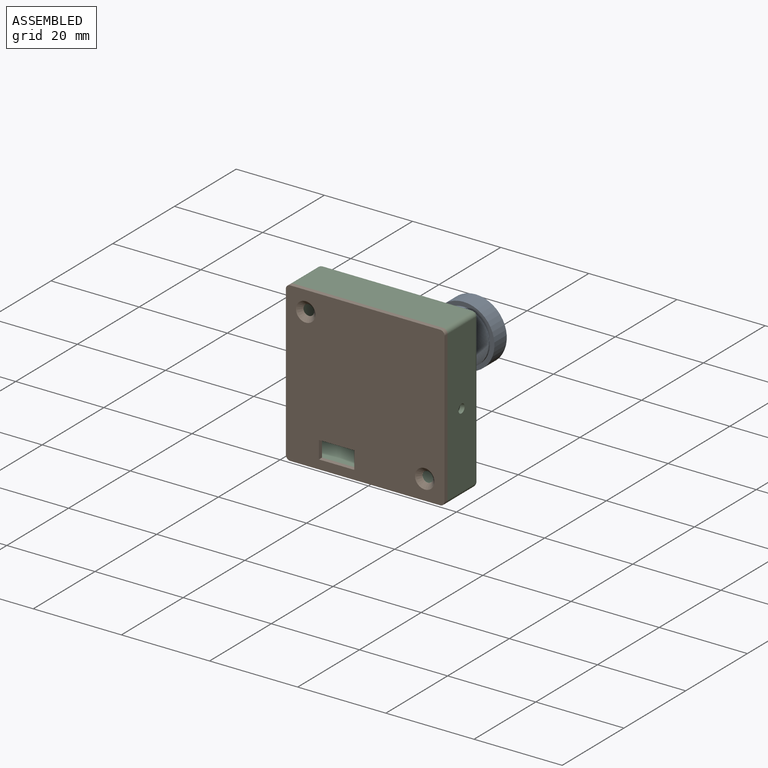
[diagram: assembled view]
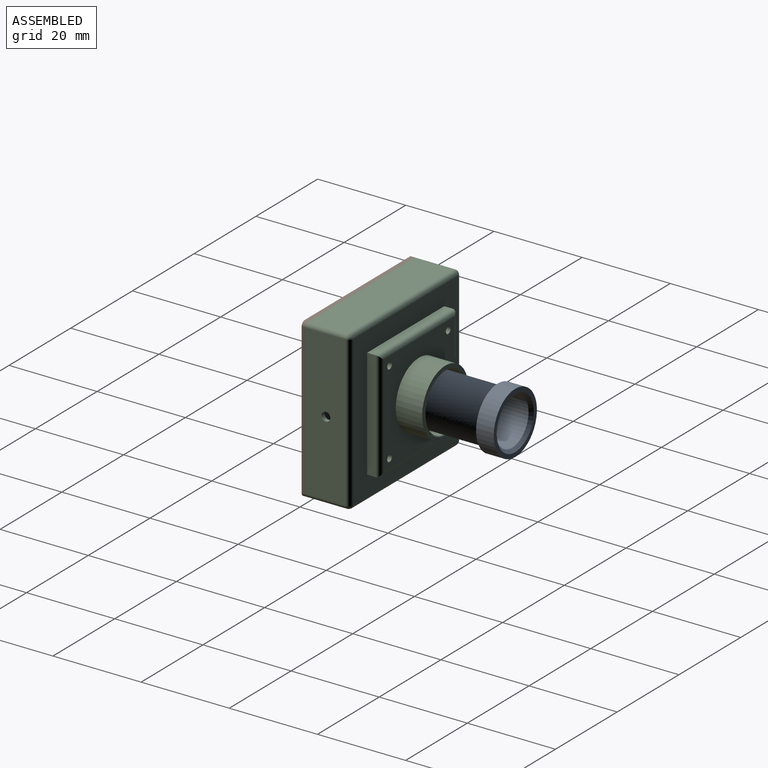
[diagram: assembled view, second angle]
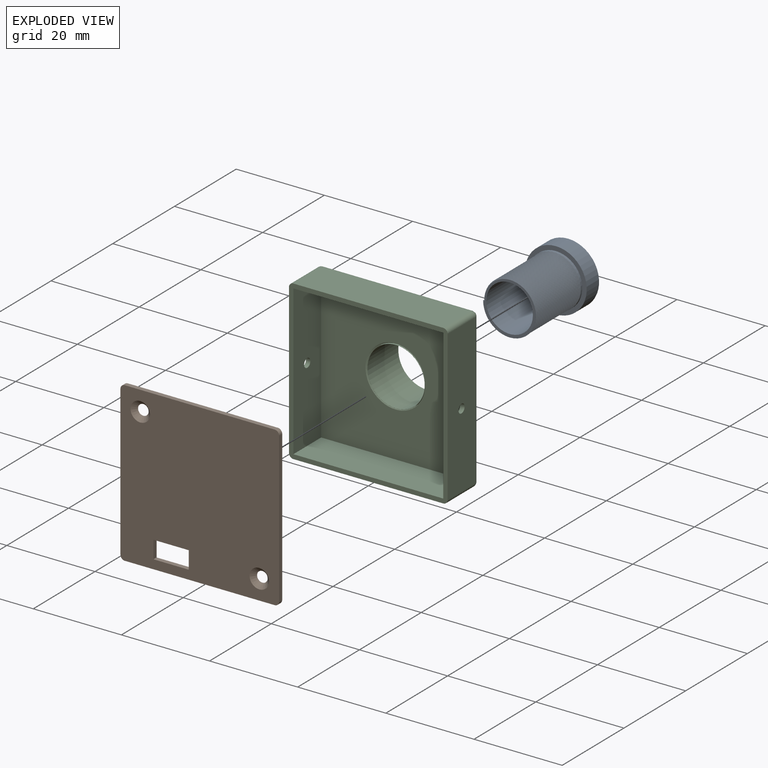
[diagram: exploded view]
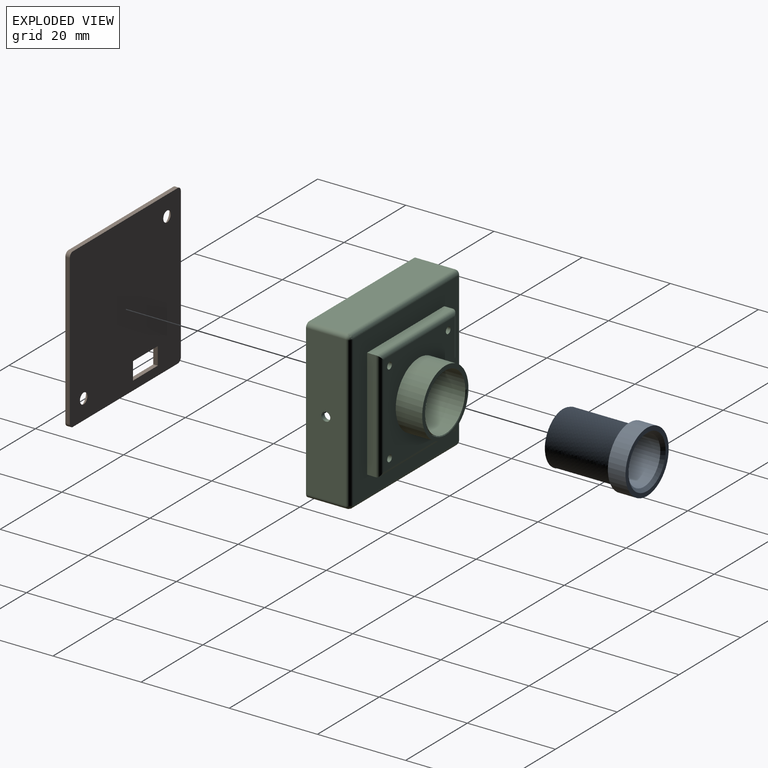
[diagram: exploded view, second angle]
ASSEMBLY  parts=3 mates=5
PART A: 14 faces, bbox 14x19.2x14 mm
  f0: cylinder r=6mm len=12mm, axis (0,-1,0), area 18.9mm2, adj f3,f8,f9
  f1: cylinder r=6mm len=12mm, axis (0,-1,0), area 1.9mm2, adj f2,f10,f11
  f2: plane 12.05x11.88mm, normal (0,-1,0), area 21.9mm2, adj f1,f7,f10,f11,f12
  f3: plane 14x14mm, normal (0,-1,0), area 40.8mm2, adj f0,f4
  f4: cylinder r=7mm len=14mm, axis (0,-1,0), area 175.9mm2, adj f3,f5
  f5: plane 14x14mm, normal (0,1,0), area 40.8mm2, adj f4,f6
  f6: cone r=5.29mm half-angle=45deg, axis (0,1,0), area 35.5mm2, adj f5,f7
  f7: cylinder r=5.29mm len=18.29mm, axis (0,1,0), area 608.4mm2, adj f2,f6
  f8: plane 0.45x0.44mm, normal (0,0,-1), area 0.1mm2, adj f0,f9,f12,f13
  f9: bspline ~13.86x12.01mm, area 3.6mm2, adj f0,f8,f13
  f10: plane 0.44x0.25mm, normal (0,0,1), area 0.1mm2, adj f1,f2,f11,f12,f13
  f11: bspline ~12.13x12.01mm, area 2.1mm2, adj f1,f2,f10,f12
  f12: bspline ~14.67x13.66mm, area 524.3mm2, adj f2,f8,f10,f11,f13
  f13: bspline ~14.67x13.66mm, area 522.6mm2, adj f8,f9,f10,f12
PART B: 16 faces, bbox 36x1x36 mm
  f0: plane 34x1mm, normal (1,0,0), area 34mm2, adj f4,f5,f6,f7
  f1: plane 34x1mm, normal (0,0,1), area 34mm2, adj f4,f5,f6,f9
  f2: plane 34x1mm, normal (-1,0,0), area 34mm2, adj f4,f5,f8,f9
  f3: plane 34x1mm, normal (0,0,-1), area 34mm2, adj f4,f5,f7,f8
  f4: plane 36x36mm, normal (0,-1,0), area 1232.7mm2, adj f0,f1,f2,f3,f6,f7,f8,f9
  f5: plane 36x36mm, normal (0,1,0), area 1254.1mm2, adj f0,f1,f2,f3,f6,f7,f8,f9
  f6: cylinder r=1mm len=1mm, axis (0,1,0), area 1.6mm2, adj f0,f1,f4,f5
  f7: cylinder r=1mm len=1mm, axis (0,1,0), area 1.6mm2, adj f0,f3,f4,f5
  f8: cylinder r=1mm len=1mm, axis (0,1,0), area 1.6mm2, adj f2,f3,f4,f5
  f9: cylinder r=1mm len=1mm, axis (0,1,0), area 1.6mm2, adj f1,f2,f4,f5
  f10: plane 4x1mm, normal (1,0,0), area 4mm2, adj f4,f5,f11,f13
  f11: plane 8x1mm, normal (0,0,-1), area 8mm2, adj f4,f5,f10,f12
  f12: plane 4x1mm, normal (-1,0,0), area 4mm2, adj f4,f5,f11,f13
  f13: plane 8x1mm, normal (0,0,1), area 8mm2, adj f4,f5,f10,f12
  f14: cone r=2.2mm half-angle=45deg, axis (0,-1,0), area 15.1mm2, adj f4,f5
  f15: cone r=2.2mm half-angle=45deg, axis (0,-1,0), area 15.1mm2, adj f4,f5
PART C: 56 faces, bbox 36.4x19.6x36.4 mm
  f0: plane 13.04x13.04mm, normal (0,-1,0), area 0.9mm2, adj f46,f50,f51
  f1: plane 34.38x34.38mm, normal (0,-1,0), area 1011.5mm2, adj f16,f17,f18,f19,f52,f53
  f2: plane 15.09x15.09mm, normal (0,1,0), area 38.6mm2, adj f45,f46,f47,f48,f49,f50,f52
  f3: plane 12.5x2mm, normal (-1,0,0), area 20.9mm2, adj f5,f14,f22,f44
  f4: cylinder r=1mm len=9.67mm, axis (0,0,-1), area 14.3mm2, adj f13,f15,f23,f44
  f5: plane 34x34mm, normal (0,1,0), area 531mm2, adj f3,f11,f12,f13,f14,f24,f25,f26
  f6: plane 34x9mm, normal (1,0,0), area 302.9mm2, adj f10,f25,f30,f32,f55
  f7: plane 34x9mm, normal (0,0,-1), area 306mm2, adj f10,f27,f28,f30
  f8: plane 34x9mm, normal (-1,0,0), area 302.9mm2, adj f10,f26,f28,f34,f54
  f9: plane 34x9mm, normal (0,0,1), area 306mm2, adj f10,f24,f32,f34
  f10: plane 36x36mm, normal (0,-1,0), area 139.1mm2, adj f6,f7,f8,f9,f16,f17,f18,f19
  f11: plane 25x2mm, normal (1,0,0), area 50mm2, adj f5,f12,f14,f21
  f12: plane 25x2mm, normal (0,0,-1), area 50mm2, adj f5,f11,f13,f23
  f13: plane 12.5x2mm, normal (-1,0,0), area 20.9mm2, adj f4,f5,f12,f44
  f14: plane 25x2mm, normal (0,0,1), area 50mm2, adj f3,f5,f11,f20
  f15: plane 23x23mm, normal (0,1,0), area 320mm2, adj f4,f20,f21,f22,f23,f36,f37,f38
  f16: plane 34x9mm, normal (-1,0,0), area 302.9mm2, adj f1,f10,f17,f19,f55
  f17: plane 34x9mm, normal (0,0,1), area 306mm2, adj f1,f10,f16,f18
  f18: plane 34x9mm, normal (1,0,0), area 302.9mm2, adj f1,f10,f17,f19,f54
  f19: plane 34x9mm, normal (0,0,-1), area 306mm2, adj f1,f10,f16,f18
  f20: cylinder r=1mm len=25mm, axis (-1,0,0), area 37.7mm2, adj f14,f15,f21,f22
  f21: cylinder r=1mm len=25mm, axis (0,0,1), area 37.7mm2, adj f11,f15,f20,f23
  f22: cylinder r=1mm len=9.67mm, axis (0,0,-1), area 14.3mm2, adj f3,f15,f20,f44
  f23: cylinder r=1mm len=25mm, axis (1,0,0), area 37.7mm2, adj f4,f12,f15,f21
  f24: cylinder r=1mm len=34mm, axis (-1,0,0), area 53.4mm2, adj f5,f9,f33,f35
  f25: cylinder r=1mm len=34mm, axis (0,0,1), area 53.4mm2, adj f5,f6,f31,f33
  f26: cylinder r=1mm len=34mm, axis (0,0,-1), area 53.4mm2, adj f5,f8,f29,f35
  f27: cylinder r=1mm len=34mm, axis (1,0,0), area 53.4mm2, adj f5,f7,f29,f31
  f28: cylinder r=1mm len=9mm, axis (0,-1,0), area 14.1mm2, adj f7,f8,f10,f29
  f29: sphere r=1mm, area 2.1mm2, adj f26,f27,f28
  f30: cylinder r=1mm len=9mm, axis (0,-1,0), area 14.1mm2, adj f6,f7,f10,f31
  f31: sphere r=1mm, area 1mm2, adj f25,f27,f30
  f32: cylinder r=1mm len=9mm, axis (0,-1,0), area 14.1mm2, adj f6,f9,f10,f33
  f33: sphere r=1mm, area 1mm2, adj f24,f25,f32
  f34: cylinder r=1mm len=9mm, axis (0,-1,0), area 14.1mm2, adj f8,f9,f10,f35
  f35: sphere r=1mm, area 2.1mm2, adj f24,f26,f34
  f36: cylinder r=0.75mm len=1.5mm, axis (0,1,0), area 4.7mm2, adj f15,f43
  f37: cylinder r=0.75mm len=1.5mm, axis (0,1,0), area 4.7mm2, adj f15,f42
  f38: cylinder r=0.75mm len=1.5mm, axis (0,1,0), area 4.7mm2, adj f15,f41
  f39: cylinder r=0.75mm len=1.5mm, axis (0,1,0), area 4.7mm2, adj f15,f40
  f40: plane 1.5x1.5mm, normal (0,1,0), area 1.8mm2, adj f39
  f41: plane 1.5x1.5mm, normal (0,1,0), area 1.8mm2, adj f38
  f42: plane 1.5x1.5mm, normal (0,1,0), area 1.8mm2, adj f37
  f43: plane 1.5x1.5mm, normal (0,1,0), area 1.8mm2, adj f36
  f44: cylinder r=3mm len=6mm, axis (-1,0,0), area 52mm2, adj f3,f4,f13,f15,f22,f45
  f45: cylinder r=7.5mm len=15mm, axis (0,1,0), area 297.2mm2, adj f2,f15,f44
  f46: cylinder r=6.5mm len=13mm, axis (0,1,0), area 408.4mm2, adj f0,f2
  f47: plane 0.43x0.21mm, normal (0,0,-1), area 0.1mm2, adj f2,f49,f50,f52,f53
  f48: cylinder r=6.52mm len=13.04mm, axis (0,-1,0), area 2.1mm2, adj f2,f49,f50,f51
  f49: bspline ~13.35x13.22mm, area 1.9mm2, adj f2,f47,f48,f52
  f50: cylinder r=6.52mm len=13.04mm, axis (0,-1,0), area 228.7mm2, adj f0,f2,f47,f48,f51
  f51: cylinder r=6.52mm len=13.04mm, axis (0,-1,0), area 173.1mm2, adj f0,f48,f50
  f52: bspline ~16.06x13.91mm, area 425.1mm2, adj f1,f2,f47,f49,f53
  f53: bspline ~16.06x13.91mm, area 421.6mm2, adj f1,f47,f52
  f54: cylinder r=1mm len=2mm, axis (-1,0,0), area 6.3mm2, adj f8,f18
  f55: cylinder r=1mm len=2mm, axis (-1,0,0), area 6.3mm2, adj f6,f16
PLACE A t=(0,15.88,0)mm
PLACE B at identity fixed
PLACE C at identity
MATE fastened A.f0 <-> C.f45  axis (0,1,0) through (0,34.88,0)mm
MATE planar C.f45 <-> B.f5  axis (0,-1,0) through (0,0,0)mm
MATE cylindrical A.f7 <-> C.f45  axis (0,1,0) through (0,34.17,0)mm
MATE planar C.f9 <-> B.f1  axis (0,0,1) through (0,4.5,18)mm
MATE planar C.f54 <-> B.f2  axis (-1,0,0) through (-18,4.5,0)mm
